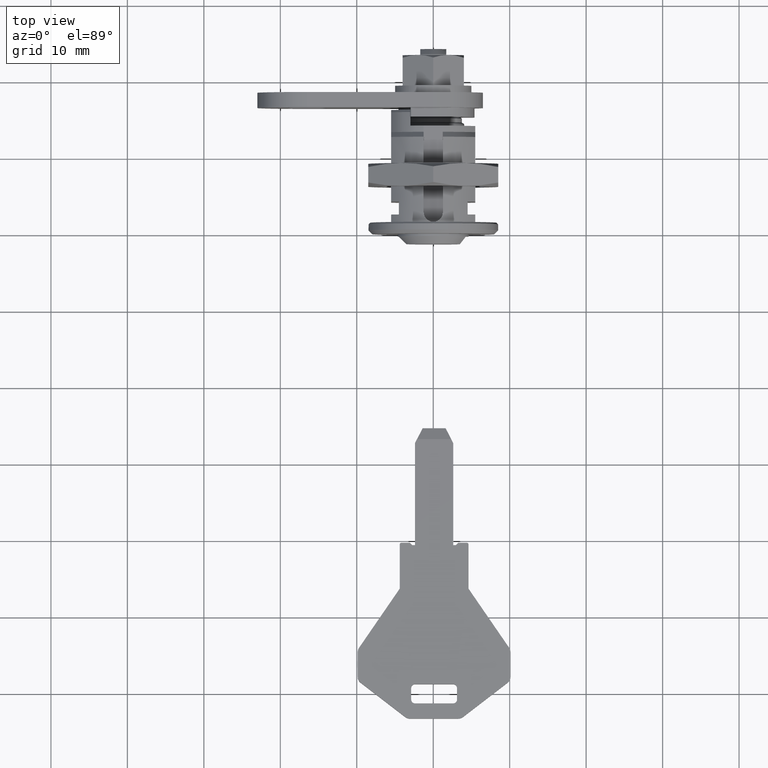
[diagram: clean part render]
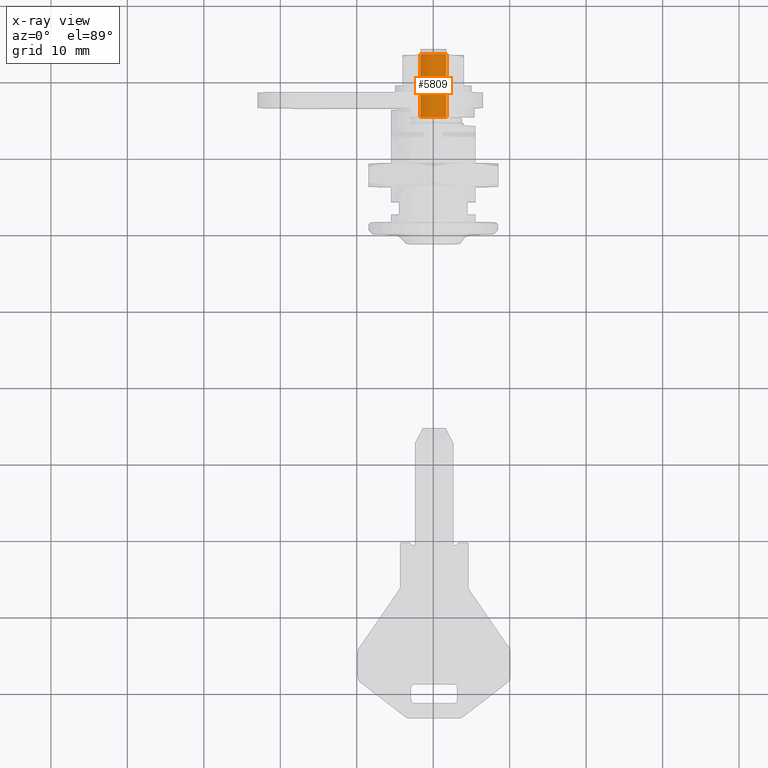
[diagram: x-ray — body ghosted, one internal face saturated and labeled with its STEP entity id]
A machine part, top view, then the same camera in x-ray: the body is ghosted and one INTERNAL B-rep face — a face not visible from any outside direction — is saturated and labeled: STEP entity #5809.
In plain terms, the highlighted face is a freeform B-spline surface patch.
Its self-contained STEP definition (entity closure, byte-faithful):
#4620=CARTESIAN_POINT('',(23.500000000000000,1.699999999995155,1.833030278010810));
#4621=VERTEX_POINT('',#4620);
#4670=CARTESIAN_POINT('',(15.300000000000001,1.699999999995155,1.833030278010810));
#4671=VERTEX_POINT('',#4670);
#4677=CARTESIAN_POINT('',(23.500000000000000,1.699999999995155,1.833030278010810));
#4678=CARTESIAN_POINT('',(15.300000000000001,1.699999999995155,1.833030278010810));
#4679=QUASI_UNIFORM_CURVE('',1,(#4677,#4678),.UNSPECIFIED.,.F.,.U.);
#4680=EDGE_CURVE('',#4621,#4671,#4679,.T.);
#4718=CARTESIAN_POINT('',(23.500000000000000,-1.700000000000780,1.833030278010810));
#4719=VERTEX_POINT('',#4718);
#4733=CARTESIAN_POINT('',(15.300000000000001,-1.699999999986220,1.833030277995115));
#4734=VERTEX_POINT('',#4733);
#4735=CARTESIAN_POINT('',(23.500000000000000,-1.700000000000780,1.833030278010810));
#4736=CARTESIAN_POINT('',(15.300000000000001,-1.699999999986220,1.833030277995115));
#4737=QUASI_UNIFORM_CURVE('',1,(#4735,#4736),.UNSPECIFIED.,.F.,.U.);
#4738=EDGE_CURVE('',#4719,#4734,#4737,.T.);
#4798=CARTESIAN_POINT('',(15.300000000000001,-1.699999999986221,1.833030277995115));
#4799=CARTESIAN_POINT('',(15.299999999999995,-2.810903E-012,3.409654534911003));
#4800=CARTESIAN_POINT('',(15.300000000000001,1.699999999995155,1.833030278010810));
#4808=(BOUNDED_CURVE()B_SPLINE_CURVE(2,(#4798,#4799,#4800),.UNSPECIFIED.,.F.,.U.)CURVE()GEOMETRIC_REPRESENTATION_ITEM()QUASI_UNIFORM_CURVE()RATIONAL_B_SPLINE_CURVE((1.0,0.733212111198607,1.0))REPRESENTATION_ITEM(''));
#4809=EDGE_CURVE('',#4734,#4671,#4808,.T.);
#5777=CARTESIAN_POINT('',(23.705000000000009,1.757132680816246,1.778337634423651));
#5778=CARTESIAN_POINT('',(15.089874999999999,1.757132680816246,1.778337634423651));
#5779=CARTESIAN_POINT('',(23.705000000000005,-0.064445400674099,3.578195161862523));
#5780=CARTESIAN_POINT('',(15.089874999999996,-0.064445400674099,3.578195161862523));
#5781=CARTESIAN_POINT('',(23.705000000000009,-1.820030130834540,1.713910826984415));
#5782=CARTESIAN_POINT('',(15.089874999999994,-1.820030130834540,1.713910826984415));
#5790=(BOUNDED_SURFACE()B_SPLINE_SURFACE(1,2,((#5777,#5779,#5781),(#5778,#5780,#5782)),.UNSPECIFIED.,.F.,.F.,.U.)B_SPLINE_SURFACE_WITH_KNOTS((2,2),(3,3),(0.0,8.615125000000010),(0.0,4.212663863006086),.UNSPECIFIED.)GEOMETRIC_REPRESENTATION_ITEM()RATIONAL_B_SPLINE_SURFACE(((1.0,0.696963210757734,0.995425115108639),(1.0,0.696963210757734,0.995425115108639)))REPRESENTATION_ITEM('')SURFACE());
#5791=ORIENTED_EDGE('',*,*,#4680,.T.);
#5792=ORIENTED_EDGE('',*,*,#4809,.F.);
#5793=ORIENTED_EDGE('',*,*,#4738,.F.);
#5794=CARTESIAN_POINT('',(23.500000000000000,-1.700000000000780,1.833030278010810));
#5795=CARTESIAN_POINT('',(23.500000000000000,-2.812854E-012,3.409654534911005));
#5796=CARTESIAN_POINT('',(23.500000000000000,1.699999999995155,1.833030278010810));
#5804=(BOUNDED_CURVE()B_SPLINE_CURVE(2,(#5794,#5795,#5796),.UNSPECIFIED.,.F.,.U.)CURVE()GEOMETRIC_REPRESENTATION_ITEM()QUASI_UNIFORM_CURVE()RATIONAL_B_SPLINE_CURVE((1.0,0.733212111198606,1.0))REPRESENTATION_ITEM(''));
#5805=EDGE_CURVE('',#4719,#4621,#5804,.T.);
#5806=ORIENTED_EDGE('',*,*,#5805,.T.);
#5807=EDGE_LOOP('',(#5791,#5792,#5793,#5806));
#5808=FACE_OUTER_BOUND('',#5807,.T.);
#5809=ADVANCED_FACE('',(#5808),#5790,.T.);